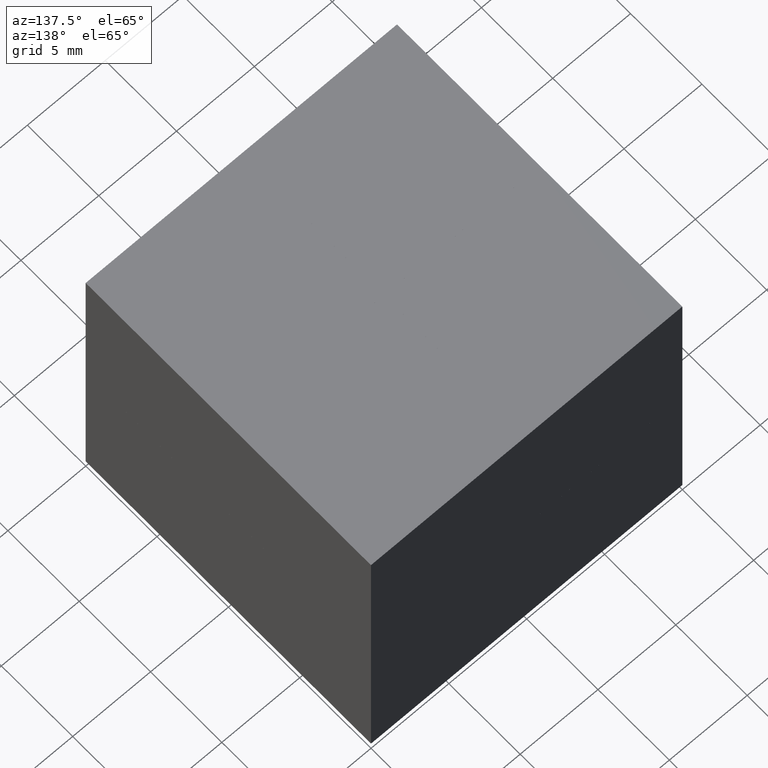
[diagram: clean part render]
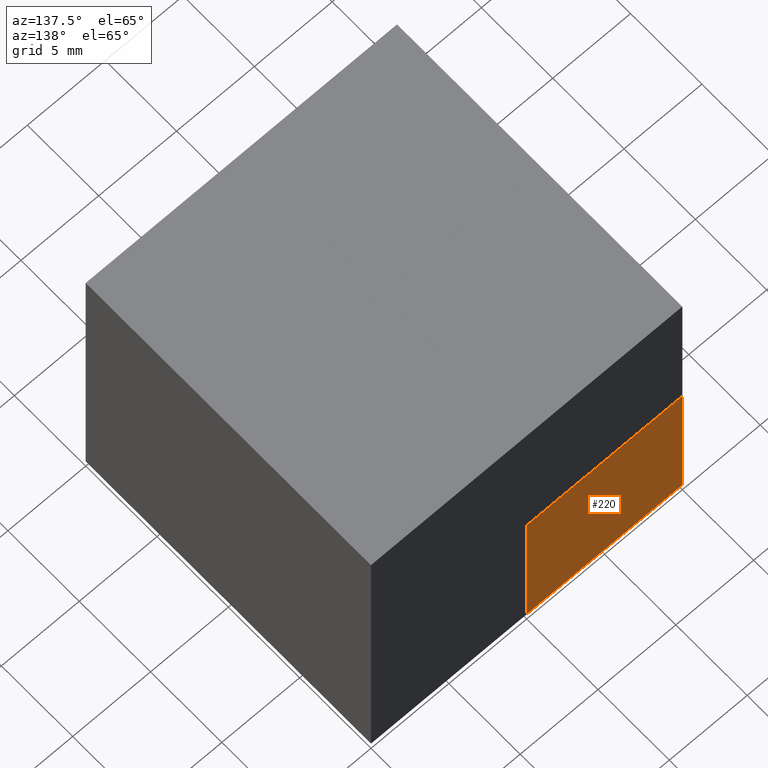
[diagram: same view with one face highlighted and labeled with its STEP entity id]
A machine part, auxiliary view. The second image highlights one B-rep face of the part: STEP entity #220.
In plain terms, the highlighted planar face has unit normal (0, -1, 0).
Its self-contained STEP definition (entity closure, byte-faithful):
#38 = CARTESIAN_POINT ( 'NONE',  ( -10.00000000000000178, 10.00000000000000178, -10.00000000000000000 ) ) ;
#62 = LINE ( 'NONE', #70, #174 ) ;
#70 = CARTESIAN_POINT ( 'NONE',  ( -10.00000000000000178, 10.00000000000000178, -10.00000000000000000 ) ) ;
#174 = VECTOR ( 'NONE', #647, 1000.000000000000000 ) ;
#196 = DIRECTION ( 'NONE',  ( 4.701966460710243626E-16, 0.0000000000000000000, 1.000000000000000000 ) ) ;
#214 = FACE_OUTER_BOUND ( 'NONE', #719, .T. ) ;
#220 = ADVANCED_FACE ( 'NONE', ( #214 ), #1846, .F. ) ;
#243 = DIRECTION ( 'NONE',  ( 0.0000000000000000000, -0.0000000000000000000, -1.000000000000000000 ) ) ;
#302 = CARTESIAN_POINT ( 'NONE',  ( -0.02000000000000431294, 10.00000000000000178, -10.00000000000000000 ) ) ;
#305 = CARTESIAN_POINT ( 'NONE',  ( -0.02000000000000662359, 9.999979445485164931, -9.999944303006758517 ) ) ;
#445 = CARTESIAN_POINT ( 'NONE',  ( -0.02000000000000042716, 10.00000000000000178, -0.01999999999999918510 ) ) ;
#502 = AXIS2_PLACEMENT_3D ( 'NONE', #830, #1543, #243 ) ;
#647 = DIRECTION ( 'NONE',  ( -1.000000000000000000, -0.0000000000000000000, -0.0000000000000000000 ) ) ;
#655 = CARTESIAN_POINT ( 'NONE',  ( -9.999928352006795862, 9.999957887586438332, -0.02000000000000120431 ) ) ;
#719 = EDGE_LOOP ( 'NONE', ( #908, #841, #1753, #1607 ) ) ;
#751 = VERTEX_POINT ( 'NONE', #445 ) ;
#765 = EDGE_CURVE ( 'NONE', #1529, #751, #1513, .T. ) ;
#830 = CARTESIAN_POINT ( 'NONE',  ( -10.00000000000000178, 10.00000000000000178, 10.00000000000000000 ) ) ;
#841 = ORIENTED_EDGE ( 'NONE', *, *, #1627, .F. ) ;
#906 = EDGE_CURVE ( 'NONE', #1726, #1621, #1840, .T. ) ;
#908 = ORIENTED_EDGE ( 'NONE', *, *, #906, .F. ) ;
#915 = VECTOR ( 'NONE', #1692, 1000.000000000000000 ) ;
#1110 = CARTESIAN_POINT ( 'NONE',  ( -10.00000000000000178, 10.00000000000000178, 10.00000000000000000 ) ) ;
#1167 = CARTESIAN_POINT ( 'NONE',  ( -0.01999999999999961878, 10.00000000000000178, -0.01999999999999896999 ) ) ;
#1198 = LINE ( 'NONE', #1167, #1312 ) ;
#1312 = VECTOR ( 'NONE', #1747, 1000.000000000000000 ) ;
#1314 = VECTOR ( 'NONE', #196, 1000.000000000000000 ) ;
#1325 = EDGE_CURVE ( 'NONE', #1529, #1621, #62, .T. ) ;
#1513 = LINE ( 'NONE', #302, #1314 ) ;
#1529 = VERTEX_POINT ( 'NONE', #305 ) ;
#1543 = DIRECTION ( 'NONE',  ( 0.0000000000000000000, -1.000000000000000000, 0.0000000000000000000 ) ) ;
#1607 = ORIENTED_EDGE ( 'NONE', *, *, #1325, .T. ) ;
#1621 = VERTEX_POINT ( 'NONE', #38 ) ;
#1627 = EDGE_CURVE ( 'NONE', #751, #1726, #1198, .T. ) ;
#1692 = DIRECTION ( 'NONE',  ( -0.0000000000000000000, -0.0000000000000000000, -1.000000000000000000 ) ) ;
#1726 = VERTEX_POINT ( 'NONE', #655 ) ;
#1747 = DIRECTION ( 'NONE',  ( -1.000000000000000000, 0.0000000000000000000, -6.144808154429992421E-17 ) ) ;
#1753 = ORIENTED_EDGE ( 'NONE', *, *, #765, .F. ) ;
#1840 = LINE ( 'NONE', #1110, #915 ) ;
#1846 = PLANE ( 'NONE',  #502 ) ;